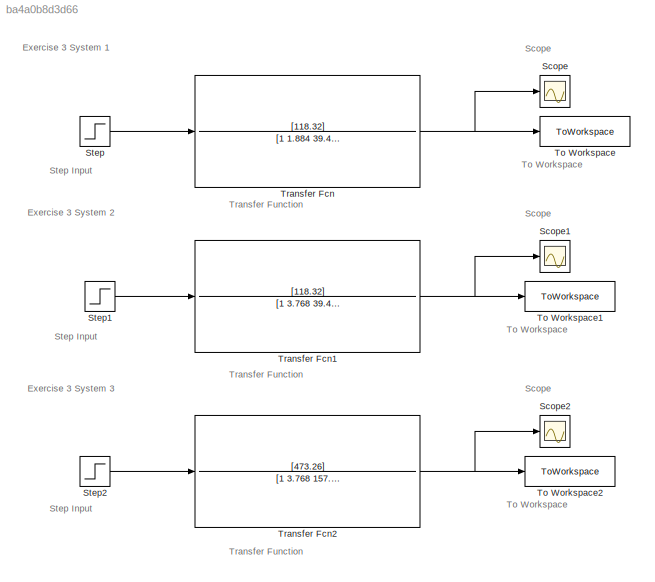
MODEL slx_ba4a0b8d3d66
KIND model
CONFIG AbsTol = auto
CONFIG EnableMultiTasking = off
CONFIG FixedStep = auto
CONFIG MaxStep = auto
CONFIG MinStep = auto
CONFIG RelTol = 1e-9
CONFIG SampleTimeConstraint = Unconstrained
CONFIG SolverName = VariableStepAuto
CONFIG StartTime = 0.0
CONFIG StopTime = 120
BLOCK [Scope] Scope
  Floating = off
  NumInputPorts = 1
  ScopeSpecificationString = Simulink.scopes.TimeScopeBlockCfg('CurrentConfiguration', extmgr.ConfigurationSet(extmgr.Configuration('Core','General UI',true),extmgr.Configuration('Core','Source UI',true),extmgr.Configuration('Sources','WiredSimulink',true),extmgr.Configuration('Visuals','Time Domain',true,'SerializedDisplays',{struct('MinYLimReal','-0.60783','MaxYLimReal','5.47044','YLabelReal','','MinYLimMag','0.00000','MaxY...<+1365ch>
BLOCK [Scope] Scope1
  Floating = off
  NumInputPorts = 1
  ScopeSpecificationString = Simulink.scopes.TimeScopeBlockCfg('CurrentConfiguration', extmgr.ConfigurationSet(extmgr.Configuration('Core','General UI',true),extmgr.Configuration('Core','Source UI',true),extmgr.Configuration('Sources','WiredSimulink',true,'DataLoggingVariableName','ScopeData1'),extmgr.Configuration('Visuals','Time Domain',true,'SerializedDisplays',{struct('MinYLimReal','-0.51461','MaxYLimReal','4.63145','YLab...<+1405ch>
BLOCK [Scope] Scope2
  Floating = off
  NumInputPorts = 1
  ScopeSpecificationString = Simulink.scopes.TimeScopeBlockCfg('CurrentConfiguration', extmgr.ConfigurationSet(extmgr.Configuration('Core','General UI',true),extmgr.Configuration('Core','Source UI',true),extmgr.Configuration('Sources','WiredSimulink',true,'DataLoggingVariableName','ScopeData2'),extmgr.Configuration('Visuals','Time Domain',true,'SerializedDisplays',{struct('MinYLimReal','-0.60782','MaxYLimReal','5.4704','YLabe...<+1397ch>
BLOCK [Step] Step
  SampleTime = 0
BLOCK [Step] Step1
  SampleTime = 0
BLOCK [Step] Step2
  SampleTime = 0
BLOCK [ToWorkspace] To Workspace
  FixptAsFi = on
  MaxDataPoints = inf
  SampleTime = -1
  VariableName = simout
BLOCK [ToWorkspace] To Workspace1
  FixptAsFi = on
  MaxDataPoints = inf
  SampleTime = -1
  VariableName = simout1
BLOCK [ToWorkspace] To Workspace2
  FixptAsFi = on
  MaxDataPoints = inf
  SampleTime = -1
  VariableName = simout2
BLOCK [TransferFcn] Transfer Fcn
  Denominator = [1 1.884 39.438]
  Numerator = [118.32]
BLOCK [TransferFcn] Transfer Fcn1
  Denominator = [1 3.768 39.438]
  Numerator = [118.32]
BLOCK [TransferFcn] Transfer Fcn2
  Denominator = [1 3.768 157.75]
  Numerator = [473.26]
ANNOTATION (root): Exercise 3 System 1
ANNOTATION (root): Exercise 3 System 2
ANNOTATION (root): Exercise 3 System 3
ANNOTATION (root): Scope
ANNOTATION (root): Step Input
ANNOTATION (root): To Workspace
ANNOTATION (root): Transfer Function
LINE Step1:1 -> Transfer Fcn1:1
LINE Step2:1 -> Transfer Fcn2:1
LINE Step:1 -> Transfer Fcn:1
NET Transfer Fcn1:1 -> Scope1:1, To Workspace1:1
NET Transfer Fcn2:1 -> Scope2:1, To Workspace2:1
NET Transfer Fcn:1 -> Scope:1, To Workspace:1
note: NET lines group one-source signal fan-out (src -> all destinations, sorted); 1:1 wires keep LINE
